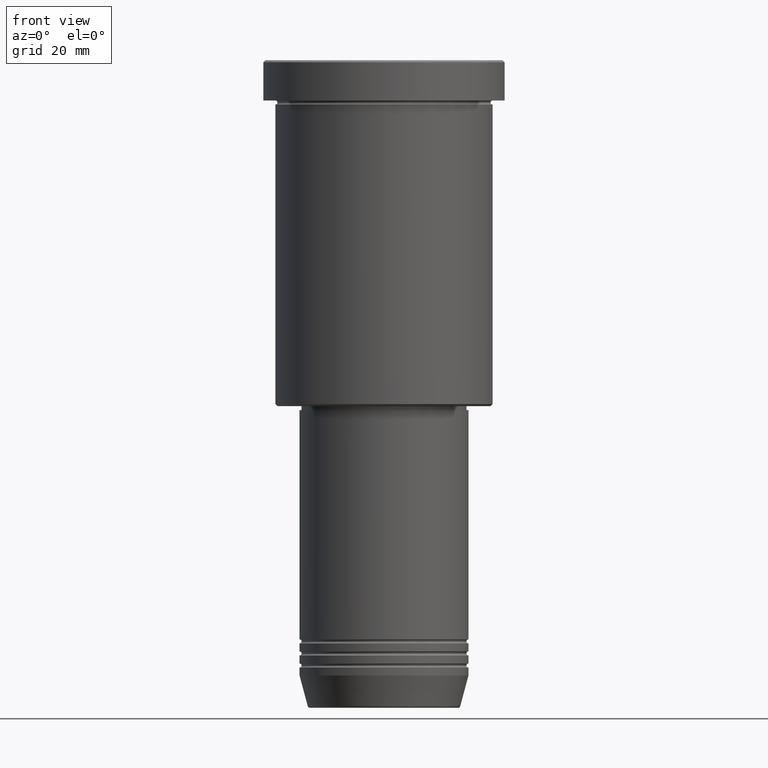
[diagram: clean part render]
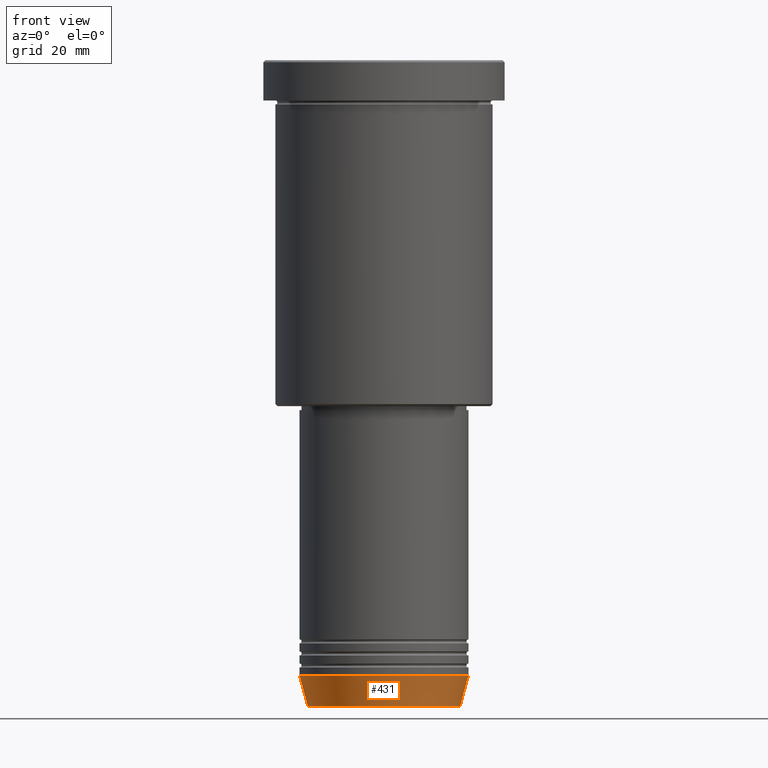
[diagram: same view with one face highlighted and labeled with its STEP entity id]
A machine part, front view. The second image highlights one B-rep face of the part: STEP entity #431.
In plain terms, the highlighted conical surface has half-angle 15 deg.
Its self-contained STEP definition (entity closure, byte-faithful):
#4 = EDGE_CURVE ( 'NONE', #599, #509, #789, .T. ) ;
#15 = EDGE_CURVE ( 'NONE', #64, #509, #95, .T. ) ;
#28 = EDGE_LOOP ( 'NONE', ( #373, #985, #216, #1117 ) ) ;
#34 = AXIS2_PLACEMENT_3D ( 'NONE', #441, #316, #874 ) ;
#64 = VERTEX_POINT ( 'NONE', #720 ) ;
#95 = CIRCLE ( 'NONE', #952, 21.00000000000000000 ) ;
#114 = CIRCLE ( 'NONE', #365, 18.95570587970606624 ) ;
#142 = FACE_OUTER_BOUND ( 'NONE', #28, .T. ) ;
#207 = CONICAL_SURFACE ( 'NONE', #34, 21.00000000000000000, 0.2617993877991500740 ) ;
#216 = ORIENTED_EDGE ( 'NONE', *, *, #4, .T. ) ;
#223 = LINE ( 'NONE', #254, #324 ) ;
#241 = CARTESIAN_POINT ( 'NONE',  ( 0.000000000000000000, 0.000000000000000000, -153.0000000000000000 ) ) ;
#251 = CARTESIAN_POINT ( 'NONE',  ( 18.95570587970606624, 0.000000000000000000, -160.6294095225512422 ) ) ;
#254 = CARTESIAN_POINT ( 'NONE',  ( -21.00000000000000000, 2.571758278209441661E-15, -153.0000000000000000 ) ) ;
#268 = CARTESIAN_POINT ( 'NONE',  ( 21.00000000000000000, 0.000000000000000000, -153.0000000000000000 ) ) ;
#316 = DIRECTION ( 'NONE',  ( -0.000000000000000000, -0.000000000000000000, 1.000000000000000000 ) ) ;
#324 = VECTOR ( 'NONE', #687, 1000.000000000000000 ) ;
#329 = CARTESIAN_POINT ( 'NONE',  ( 21.00000000000000000, 0.000000000000000000, -153.0000000000000000 ) ) ;
#358 = EDGE_CURVE ( 'NONE', #1045, #64, #223, .T. ) ;
#359 = DIRECTION ( 'NONE',  ( -0.000000000000000000, -0.000000000000000000, 1.000000000000000000 ) ) ;
#365 = AXIS2_PLACEMENT_3D ( 'NONE', #529, #976, #887 ) ;
#373 = ORIENTED_EDGE ( 'NONE', *, *, #358, .F. ) ;
#392 = EDGE_CURVE ( 'NONE', #1045, #599, #114, .T. ) ;
#431 = ADVANCED_FACE ( 'NONE', ( #142 ), #207, .T. ) ;
#441 = CARTESIAN_POINT ( 'NONE',  ( 0.000000000000000000, 0.000000000000000000, -153.0000000000000000 ) ) ;
#509 = VERTEX_POINT ( 'NONE', #268 ) ;
#529 = CARTESIAN_POINT ( 'NONE',  ( 0.000000000000000000, 0.000000000000000000, -160.6294095225512422 ) ) ;
#550 = DIRECTION ( 'NONE',  ( 1.000000000000000000, 0.000000000000000000, 0.000000000000000000 ) ) ;
#599 = VERTEX_POINT ( 'NONE', #251 ) ;
#687 = DIRECTION ( 'NONE',  ( -0.2588190451025213501, 3.169619151431772337E-17, 0.9659258262890680902 ) ) ;
#696 = DIRECTION ( 'NONE',  ( 0.2588190451025213501, 0.000000000000000000, 0.9659258262890680902 ) ) ;
#720 = CARTESIAN_POINT ( 'NONE',  ( -21.00000000000000000, 2.571758278209441661E-15, -153.0000000000000000 ) ) ;
#789 = LINE ( 'NONE', #329, #805 ) ;
#805 = VECTOR ( 'NONE', #696, 1000.000000000000000 ) ;
#813 = CARTESIAN_POINT ( 'NONE',  ( -18.95570587970606624, 2.446581365662755730E-15, -160.6294095225512422 ) ) ;
#874 = DIRECTION ( 'NONE',  ( 1.000000000000000000, 0.000000000000000000, 0.000000000000000000 ) ) ;
#887 = DIRECTION ( 'NONE',  ( 1.000000000000000000, 0.000000000000000000, 0.000000000000000000 ) ) ;
#952 = AXIS2_PLACEMENT_3D ( 'NONE', #241, #359, #550 ) ;
#976 = DIRECTION ( 'NONE',  ( -0.000000000000000000, -0.000000000000000000, 1.000000000000000000 ) ) ;
#985 = ORIENTED_EDGE ( 'NONE', *, *, #392, .T. ) ;
#1045 = VERTEX_POINT ( 'NONE', #813 ) ;
#1117 = ORIENTED_EDGE ( 'NONE', *, *, #15, .F. ) ;